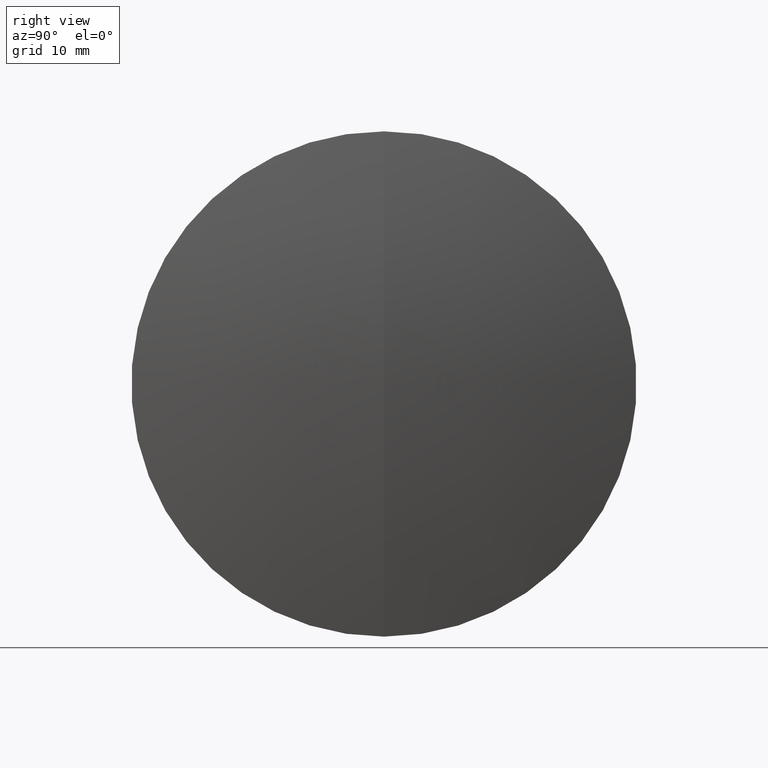
[diagram: clean part render]
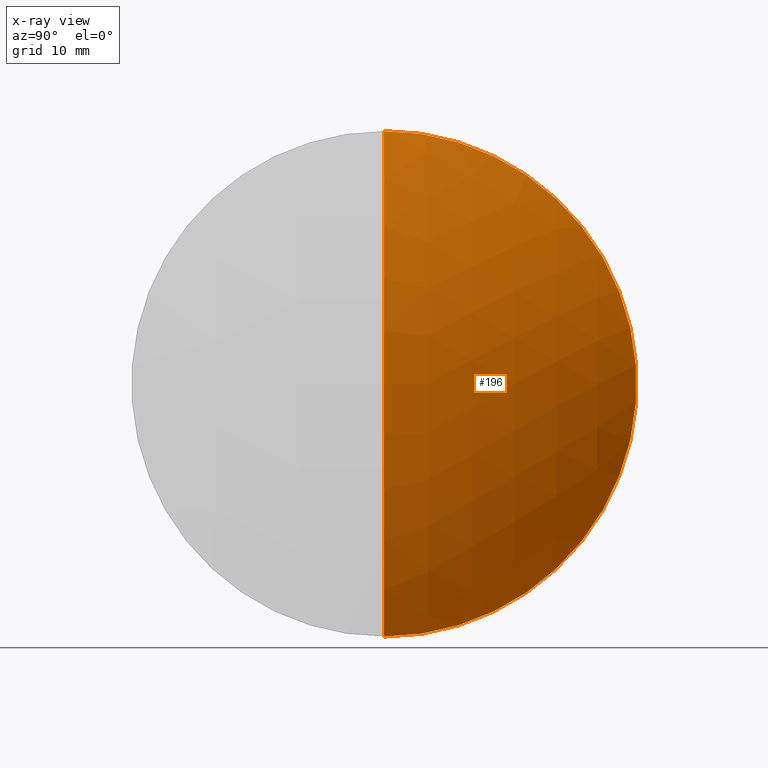
[diagram: x-ray — body ghosted, one internal face saturated and labeled with its STEP entity id]
A machine part, right view, then the same camera in x-ray: the body is ghosted and one INTERNAL B-rep face — a face not visible from any outside direction — is saturated and labeled: STEP entity #196.
In plain terms, the highlighted spherical surface has radius 48.197 mm.
Its self-contained STEP definition (entity closure, byte-faithful):
#1 = CARTESIAN_POINT ( 'NONE',  ( 181.4884551574296000, 0.0000000000000000000, -3.469446951953614200E-015 ) ) ;
#2 = CARTESIAN_POINT ( 'NONE',  ( 222.6946538294740800, 3.061616997868383000E-015, -25.00000000000000000 ) ) ;
#5 = CIRCLE ( 'NONE', #287, 48.19700000000000300 ) ;
#12 = AXIS2_PLACEMENT_3D ( 'NONE', #345, #269, #17 ) ;
#17 = DIRECTION ( 'NONE',  ( 0.0000000000000000000, 0.0000000000000000000, 1.000000000000000000 ) ) ;
#27 = VERTEX_POINT ( 'NONE', #341 ) ;
#28 = AXIS2_PLACEMENT_3D ( 'NONE', #1, #213, #173 ) ;
#43 = CARTESIAN_POINT ( 'NONE',  ( 181.4884551574296000, 0.0000000000000000000, -3.469446951953614200E-015 ) ) ;
#45 = SPHERICAL_SURFACE ( 'NONE', #28, 48.19700000000000300 ) ;
#58 = EDGE_CURVE ( 'NONE', #290, #27, #330, .T. ) ;
#61 = DIRECTION ( 'NONE',  ( 0.0000000000000000000, -1.224646799147353200E-016, 1.000000000000000000 ) ) ;
#118 = DIRECTION ( 'NONE',  ( 0.0000000000000000000, 0.0000000000000000000, -1.000000000000000000 ) ) ;
#139 = ORIENTED_EDGE ( 'NONE', *, *, #58, .F. ) ;
#160 = DIRECTION ( 'NONE',  ( -0.0000000000000000000, 1.000000000000000000, 1.224646799147353200E-016 ) ) ;
#173 = DIRECTION ( 'NONE',  ( 0.0000000000000000000, 0.0000000000000000000, 1.000000000000000000 ) ) ;
#177 = EDGE_CURVE ( 'NONE', #27, #321, #294, .T. ) ;
#196 = ADVANCED_FACE ( 'NONE', ( #270 ), #45, .T. ) ;
#197 = EDGE_CURVE ( 'NONE', #290, #321, #5, .T. ) ;
#213 = DIRECTION ( 'NONE',  ( 0.0000000000000000000, 1.000000000000000000, 0.0000000000000000000 ) ) ;
#231 = CARTESIAN_POINT ( 'NONE',  ( 229.6854551574296000, 0.0000000000000000000, -5.182318630283648400E-016 ) ) ;
#237 = AXIS2_PLACEMENT_3D ( 'NONE', #43, #337, #118 ) ;
#243 = ORIENTED_EDGE ( 'NONE', *, *, #197, .T. ) ;
#259 = CARTESIAN_POINT ( 'NONE',  ( 181.4884551574296000, 0.0000000000000000000, -3.469446951953614200E-015 ) ) ;
#269 = DIRECTION ( 'NONE',  ( -1.000000000000000000, -0.0000000000000000000, -0.0000000000000000000 ) ) ;
#270 = FACE_OUTER_BOUND ( 'NONE', #302, .T. ) ;
#287 = AXIS2_PLACEMENT_3D ( 'NONE', #259, #160, #61 ) ;
#290 = VERTEX_POINT ( 'NONE', #231 ) ;
#294 = CIRCLE ( 'NONE', #12, 24.99999999999999600 ) ;
#302 = EDGE_LOOP ( 'NONE', ( #139, #243, #334 ) ) ;
#321 = VERTEX_POINT ( 'NONE', #2 ) ;
#330 = CIRCLE ( 'NONE', #237, 48.19700000000000300 ) ;
#334 = ORIENTED_EDGE ( 'NONE', *, *, #177, .F. ) ;
#337 = DIRECTION ( 'NONE',  ( 0.0000000000000000000, -1.000000000000000000, 0.0000000000000000000 ) ) ;
#341 = CARTESIAN_POINT ( 'NONE',  ( 222.6946538294740800, 0.0000000000000000000, 24.99999999999999600 ) ) ;
#345 = CARTESIAN_POINT ( 'NONE',  ( 222.6946538294740800, 0.0000000000000000000, 0.0000000000000000000 ) ) ;